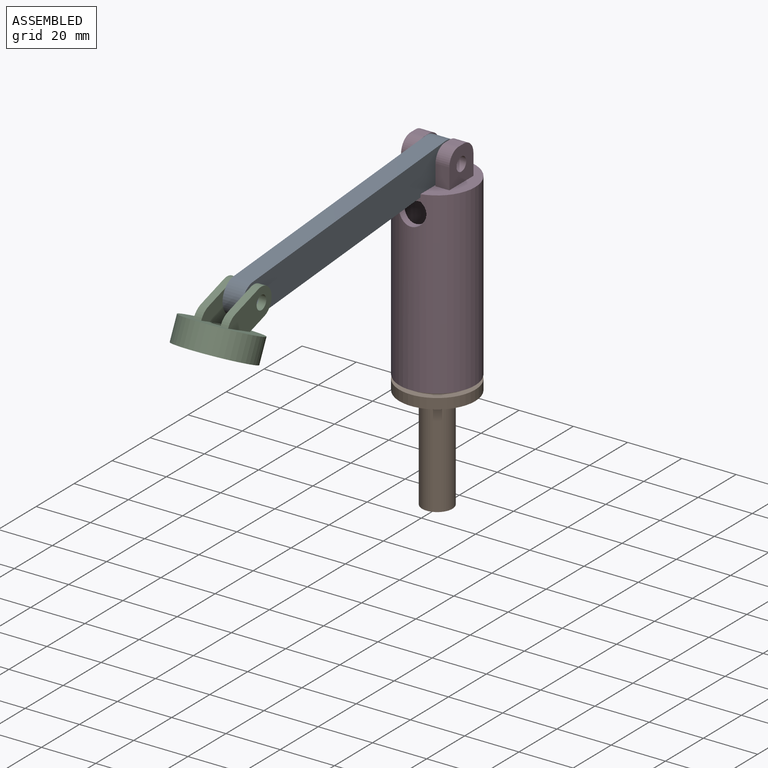
[diagram: assembled view]
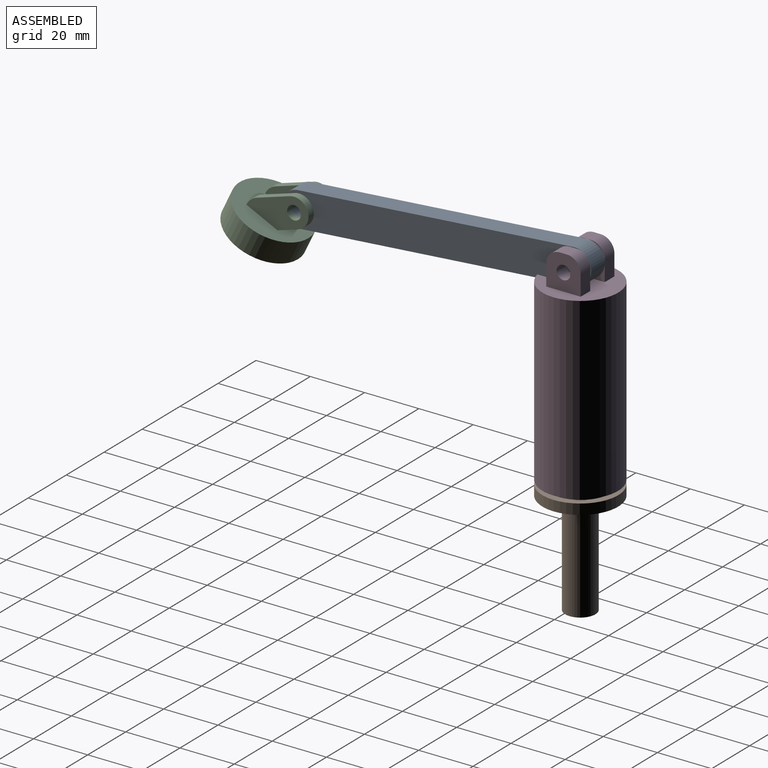
[diagram: assembled view, second angle]
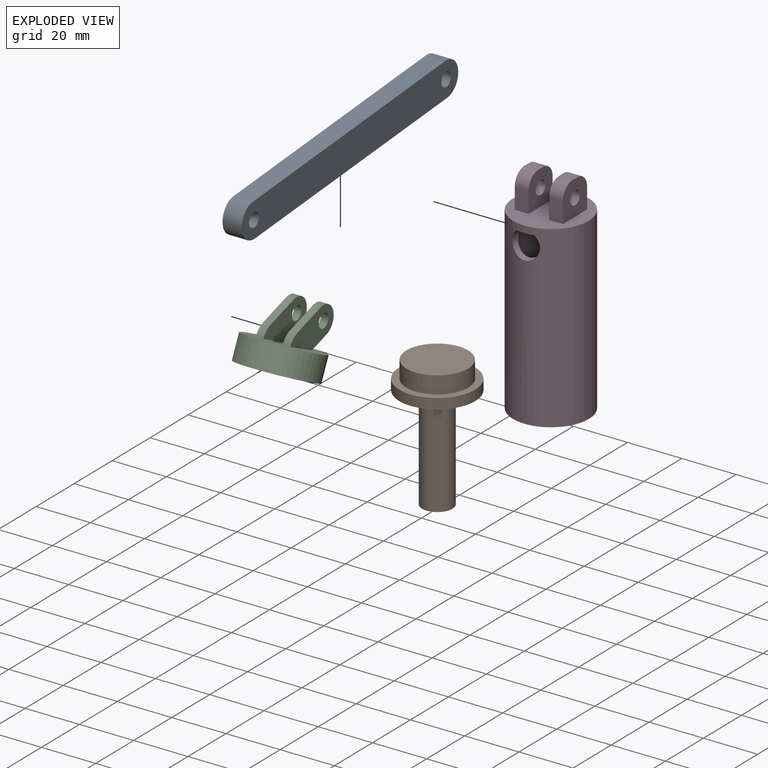
[diagram: exploded view]
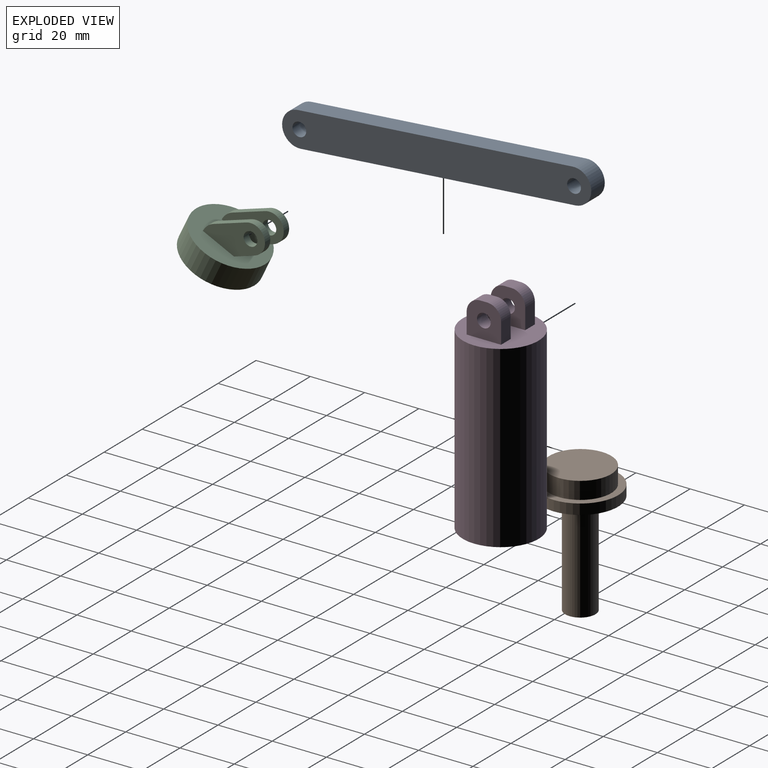
[diagram: exploded view, second angle]
ASSEMBLY  parts=4 mates=3
PART A: 8 faces, bbox 12.7x7.1x114.3 mm
  f0: plane 101.6x7.11mm, normal (-1,0,0), area 722.6mm2, adj f1,f4,f6,f7
  f1: cylinder r=6.35mm len=12.7mm, axis (0,1,0), area 141.9mm2, adj f0,f2,f6,f7
  f2: plane 101.6x7.11mm, normal (1,0,0), area 722.6mm2, adj f1,f4,f6,f7
  f3: cylinder r=2.54mm len=7.11mm, axis (0,1,0), area 113.5mm2, adj f6,f7
  f4: cylinder r=6.35mm len=12.7mm, axis (0,1,0), area 141.9mm2, adj f0,f2,f6,f7
  f5: cylinder r=2.54mm len=7.11mm, axis (0,1,0), area 113.5mm2, adj f6,f7
  f6: plane 114.3x12.7mm, normal (0,-1,0), area 1376.5mm2, adj f0,f1,f2,f3,f4,f5
  f7: plane 114.3x12.7mm, normal (0,1,0), area 1376.5mm2, adj f0,f1,f2,f3,f4,f5
PART B: 7 faces, bbox 27.9x27.9x48.3 mm
  f0: cylinder r=13.97mm len=27.94mm, axis (0,0,-1), area 334.4mm2, adj f1,f2
  f1: plane 27.94x27.94mm, normal (0,0,1), area 205.4mm2, adj f0,f3
  f2: plane 27.94x27.94mm, normal (0,0,-1), area 515mm2, adj f0,f5
  f3: cylinder r=11.39mm len=22.78mm, axis (0,0,-1), area 454.5mm2, adj f1,f4
  f4: plane 22.78x22.78mm, normal (0,0,1), area 407.7mm2, adj f3
  f5: cylinder r=5.59mm len=38.1mm, axis (0,0,1), area 1337.7mm2, adj f2,f6
  f6: plane 11.18x11.18mm, normal (0,0,-1), area 98.1mm2, adj f5
PART C: 20 faces, bbox 27.9x27.9x23.6 mm
  f0: plane 9.33x8.62mm, normal (-0.68,0,0.73), area 35.5mm2, adj f2,f4,f11,f18
  f1: cylinder r=2.54mm len=5.08mm, axis (0,1,0), area 44.6mm2, adj f11,f18
  f2: cylinder r=5.33mm len=9.24mm, axis (0,1,0), area 46.8mm2, adj f0,f3,f11,f18
  f3: plane 5.9x5.46mm, normal (0.68,0,-0.73), area 22.5mm2, adj f2,f5,f11,f18
  f4: cylinder r=6.35mm len=4.66mm, axis (0,1,0), area 14.6mm2, adj f0,f5,f11,f18
  f5: plane 27.94x27.94mm, normal (0,0,1), area 510.5mm2, adj f3,f4,f7,f10,f11,f12,f16,f17
  f6: cylinder r=12.45mm len=24.89mm, axis (0,0,-1), area 496.6mm2, adj f8,f9
  f7: cylinder r=13.97mm len=27.94mm, axis (0,0,-1), area 780.3mm2, adj f5,f8
  f8: plane 27.94x27.94mm, normal (0,0,-1), area 126.5mm2, adj f6,f7
  f9: plane 24.89x24.89mm, normal (0,0,-1), area 455mm2, adj f6,f10
  f10: cylinder r=3.17mm len=6.35mm, axis (0,0,-1), area 50.7mm2, adj f5,f9
  f11: plane 20.31x14.7mm, normal (0,1,0), area 166.3mm2, adj f0,f1,f2,f3,f4,f5
  f12: plane 20.31x14.7mm, normal (0,-1,0), area 166.3mm2, adj f5,f13,f14,f15,f16,f17
  f13: plane 9.33x8.62mm, normal (-0.68,0,0.73), area 35.5mm2, adj f12,f15,f17,f19
  f14: cylinder r=2.54mm len=5.08mm, axis (0,1,0), area 44.6mm2, adj f12,f19
  f15: cylinder r=5.33mm len=9.24mm, axis (0,1,0), area 46.8mm2, adj f12,f13,f16,f19
  f16: plane 5.9x5.46mm, normal (0.68,0,-0.73), area 22.5mm2, adj f5,f12,f15,f19
  f17: cylinder r=6.35mm len=4.66mm, axis (0,1,0), area 14.6mm2, adj f5,f12,f13,f19
  f18: plane 20.31x14.7mm, normal (0,-1,0), area 166.3mm2, adj f0,f1,f2,f3,f4,f5
  f19: plane 20.31x14.7mm, normal (0,1,0), area 166.3mm2, adj f5,f13,f14,f15,f16,f17
PART D: 22 faces, bbox 27.9x27.9x78.7 mm
  f0: cylinder r=11.43mm len=63.5mm, axis (0,0,-1), area 4482mm2, adj f3,f4,f21
  f1: plane 27.94x27.94mm, normal (0,0,1), area 484.1mm2, adj f2,f5,f6,f7,f8,f10,f11,f12
  f2: cylinder r=13.97mm len=66.04mm, axis (0,0,-1), area 5719.1mm2, adj f1,f3,f4,f21
  f3: plane 27.94x27.94mm, normal (0,0,-1), area 202.7mm2, adj f0,f2
  f4: plane 25.4x22.86mm, normal (0,0,-1), area 426.7mm2, adj f0,f2,f21
  f5: plane 7.62x5.08mm, normal (0,-1,0), area 38.7mm2, adj f1,f6,f8,f20
  f6: plane 12.7x12.7mm, normal (1,0,0), area 129.9mm2, adj f1,f5,f7,f9,f16,f19,f20
  f7: plane 7.62x5.08mm, normal (0,1,0), area 38.7mm2, adj f1,f6,f8,f19
  f8: plane 12.7x12.7mm, normal (-1,0,0), area 129.9mm2, adj f1,f5,f7,f9,f16,f19,f20
  f9: plane 5.08x2.54mm, normal (0,0,1), area 12.9mm2, adj f6,f8,f19,f20
  f10: plane 7.62x5.08mm, normal (0,-1,0), area 38.7mm2, adj f1,f11,f13,f18
  f11: plane 12.7x12.7mm, normal (1,0,0), area 129.9mm2, adj f1,f10,f12,f14,f15,f17,f18
  f12: plane 7.62x5.08mm, normal (0,1,0), area 38.7mm2, adj f1,f11,f13,f17
  f13: plane 12.7x12.7mm, normal (-1,0,0), area 129.9mm2, adj f1,f10,f12,f14,f15,f17,f18
  f14: plane 5.08x2.54mm, normal (0,0,1), area 12.9mm2, adj f11,f13,f17,f18
  f15: cylinder r=2.54mm len=5.08mm, axis (1,0,0), area 81.1mm2, adj f11,f13
  f16: cylinder r=2.54mm len=5.08mm, axis (1,0,0), area 81.1mm2, adj f6,f8
  f17: cylinder r=5.08mm len=5.08mm, axis (1,0,0), area 40.5mm2, adj f11,f12,f13,f14
  f18: cylinder r=5.08mm len=5.08mm, axis (-1,0,0), area 40.5mm2, adj f10,f11,f13,f14
  f19: cylinder r=5.08mm len=5.08mm, axis (1,0,0), area 40.5mm2, adj f6,f7,f8,f9
  f20: cylinder r=5.08mm len=5.08mm, axis (-1,0,0), area 40.5mm2, adj f5,f6,f8,f9
  f21: cylinder r=5.08mm len=10.16mm, axis (0,1,0), area 67.1mm2, adj f0,f2,f4
PLACE A rot(axis=(0.59,0.59,-0.55),122.7deg) t=(-2.01,-48.29,33.94)mm
PLACE B t=(-1.76,2.34,-37.7)mm
PLACE C rot(axis=(-0.22,0.22,0.95),92.8deg) t=(-2.01,-113.23,19.95)mm
PLACE D t=(-1.76,2.34,-2.59)mm fixed
MATE slider B.f3 <-> D.f0  axis (0,0,1) through (-1.76,2.34,-35.8)mm
MATE revolute A.f3 <-> D.f15  axis (-1,0,0) through (-5.57,2.34,38.05)mm
MATE revolute C.f1 <-> A.f5  axis (1,0,0) through (-5.57,-98.93,29.83)mm
